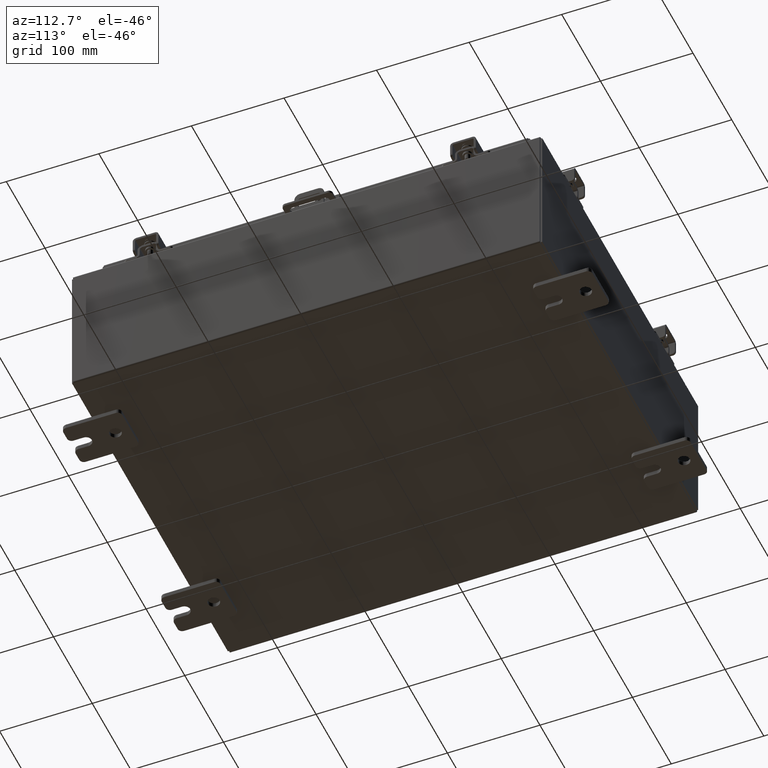
[diagram: clean part render]
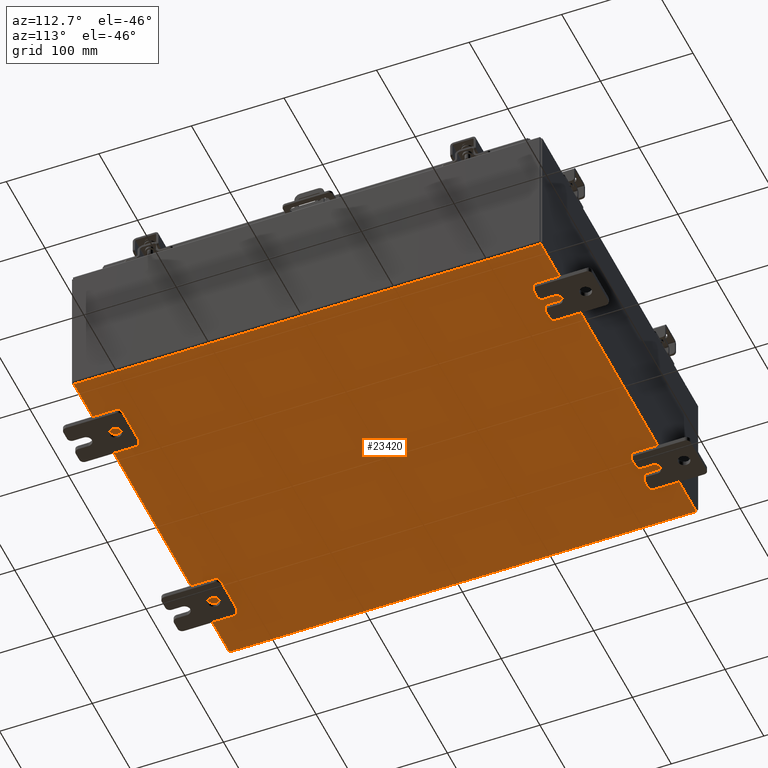
[diagram: same view with one face highlighted and labeled with its STEP entity id]
A machine part, auxiliary view. The second image highlights one B-rep face of the part: STEP entity #23420.
In plain terms, the highlighted planar face has unit normal (0, 0, -1).
Its self-contained STEP definition (entity closure, byte-faithful):
#1127 = ORIENTED_EDGE ( 'NONE', *, *, #8162, .F. ) ;
#1557 = FACE_OUTER_BOUND ( 'NONE', #3254, .T. ) ;
#1926 = EDGE_CURVE ( 'NONE', #19508, #27600, #15413, .T. ) ;
#2302 = VECTOR ( 'NONE', #9944, 39.37007874015748100 ) ;
#3254 = EDGE_LOOP ( 'NONE', ( #29309, #29202, #1127, #26017 ) ) ;
#3369 = DIRECTION ( 'NONE',  ( -0.0000000000000000000, -1.000000000000000000, -0.0000000000000000000 ) ) ;
#6765 = VECTOR ( 'NONE', #10686, 39.37007874015748100 ) ;
#8162 = EDGE_CURVE ( 'NONE', #19508, #28548, #26529, .T. ) ;
#9343 = CARTESIAN_POINT ( 'NONE',  ( -7.912299999999997400, -9.925300000000000000, -0.07469999999999994700 ) ) ;
#9359 = VECTOR ( 'NONE', #3369, 39.37007874015748100 ) ;
#9768 = CARTESIAN_POINT ( 'NONE',  ( 7.912300000000001900, -9.925300000000001800, -0.07470000000000000300 ) ) ;
#9944 = DIRECTION ( 'NONE',  ( -1.000000000000000000, -0.0000000000000000000, -0.0000000000000000000 ) ) ;
#10212 = DIRECTION ( 'NONE',  ( -1.000000000000000000, 0.0000000000000000000, -0.0000000000000000000 ) ) ;
#10686 = DIRECTION ( 'NONE',  ( 1.000000000000000000, 0.0000000000000000000, 0.0000000000000000000 ) ) ;
#12348 = CARTESIAN_POINT ( 'NONE',  ( 7.912300000000001900, 9.925299999999998200, -0.07469999999999994700 ) ) ;
#12657 = CARTESIAN_POINT ( 'NONE',  ( 7.912300000000001900, 9.925299999999996500, -0.07469999999999994700 ) ) ;
#13308 = EDGE_CURVE ( 'NONE', #20762, #27600, #24237, .T. ) ;
#15181 = CARTESIAN_POINT ( 'NONE',  ( -7.912299999999997400, 9.925299999999998200, -0.07470000000000000300 ) ) ;
#15221 = CARTESIAN_POINT ( 'NONE',  ( -7.912299999999997400, -9.925300000000001800, -0.07469999999999994700 ) ) ;
#15413 = LINE ( 'NONE', #12348, #9359 ) ;
#15537 = AXIS2_PLACEMENT_3D ( 'NONE', #28400, #23943, #10212 ) ;
#16750 = CARTESIAN_POINT ( 'NONE',  ( -7.999999999999997300, 9.925299999999998200, -0.07470000000000000300 ) ) ;
#19508 = VERTEX_POINT ( 'NONE', #12657 ) ;
#20762 = VERTEX_POINT ( 'NONE', #9343 ) ;
#21638 = PLANE ( 'NONE',  #15537 ) ;
#23420 = ADVANCED_FACE ( 'NONE', ( #1557 ), #21638, .T. ) ;
#23943 = DIRECTION ( 'NONE',  ( 0.0000000000000000000, 0.0000000000000000000, -1.000000000000000000 ) ) ;
#24237 = LINE ( 'NONE', #24416, #6765 ) ;
#24416 = CARTESIAN_POINT ( 'NONE',  ( -7.999999999999997300, -9.925300000000001800, -0.07470000000000000300 ) ) ;
#26017 = ORIENTED_EDGE ( 'NONE', *, *, #1926, .T. ) ;
#26529 = LINE ( 'NONE', #16750, #2302 ) ;
#26550 = VECTOR ( 'NONE', #26701, 39.37007874015748100 ) ;
#26701 = DIRECTION ( 'NONE',  ( -0.0000000000000000000, 1.000000000000000000, -0.0000000000000000000 ) ) ;
#26792 = EDGE_CURVE ( 'NONE', #20762, #28548, #27270, .T. ) ;
#27270 = LINE ( 'NONE', #15221, #26550 ) ;
#27600 = VERTEX_POINT ( 'NONE', #9768 ) ;
#28400 = CARTESIAN_POINT ( 'NONE',  ( 0.0000000000000000000, 0.0000000000000000000, -0.07470000000000000300 ) ) ;
#28548 = VERTEX_POINT ( 'NONE', #15181 ) ;
#29202 = ORIENTED_EDGE ( 'NONE', *, *, #26792, .T. ) ;
#29309 = ORIENTED_EDGE ( 'NONE', *, *, #13308, .F. ) ;